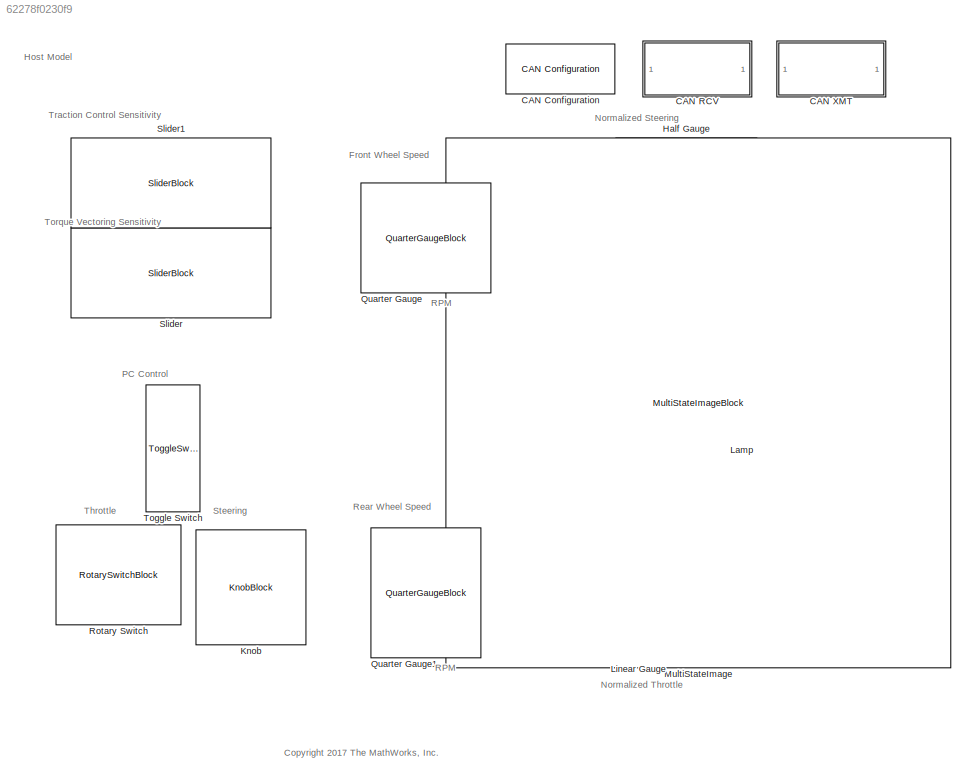
MODEL slx_62278f0230f9
KIND model
CONFIG AbsTol = auto
CONFIG EnableMultiTasking = on
CONFIG FixedStep = auto
CONFIG MaxStep = auto
CONFIG MinStep = auto
CONFIG RelTol = 1e-3
CONFIG SampleTimeConstraint = Unconstrained
CONFIG Solver = ode45
CONFIG SolverName = ode45
CONFIG StartTime = 0.0
CONFIG StopTime = inf
BLOCK [Reference] CAN Configuration  REF=canlib/CAN Configuration
  Ports = []
  SourceBlock = canlib/CAN Configuration
  SourceProductBaseCode = VN
  SourceProductName = Vehicle Network Toolbox
  SourceType = CAN Configuration
  UserDataPersistent = on
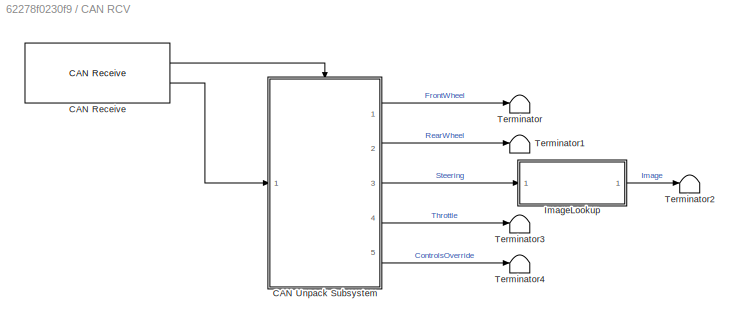
BLOCK [SubSystem] CAN RCV
  Ports = []
  RequestExecContextInheritance = off
BLOCK [Reference] CAN RCV/CAN Receive  REF=canlib/CAN Receive
  Ports = [0, 2]
  SourceBlock = canlib/CAN Receive
  SourceProductBaseCode = VN
  SourceProductName = Vehicle Network Toolbox
  SourceType = CAN Receive
  UserDataPersistent = on
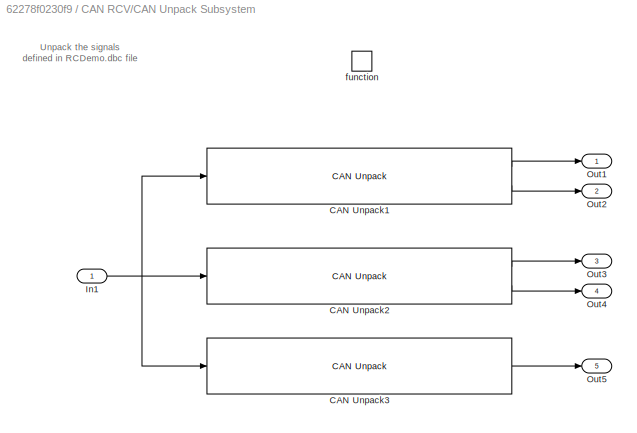
BLOCK [SubSystem] CAN RCV/CAN Unpack Subsystem
  Ports = [1, 5, 0, 1]
  RequestExecContextInheritance = off
  TreatAsAtomicUnit = on
BLOCK [Reference] CAN RCV/CAN Unpack Subsystem/CAN Unpack1  REF=canmsglib/CAN Unpack
  Ports = [1, 2]
  SourceBlock = canmsglib/CAN Unpack
  SourceProductName = Simulink Real-Time
  SourceType = CAN Unpack
BLOCK [Reference] CAN RCV/CAN Unpack Subsystem/CAN Unpack2  REF=canmsglib/CAN Unpack
  Ports = [1, 2]
  SourceBlock = canmsglib/CAN Unpack
  SourceProductName = Simulink Real-Time
  SourceType = CAN Unpack
BLOCK [Reference] CAN RCV/CAN Unpack Subsystem/CAN Unpack3  REF=canmsglib/CAN Unpack
  Ports = [1, 1]
  SourceBlock = canmsglib/CAN Unpack
  SourceProductName = Simulink Real-Time
  SourceType = CAN Unpack
BLOCK [Inport] CAN RCV/CAN Unpack Subsystem/In1
  IconDisplay = Port number
BLOCK [Outport] CAN RCV/CAN Unpack Subsystem/Out1
  IconDisplay = Port number
BLOCK [Outport] CAN RCV/CAN Unpack Subsystem/Out2
  IconDisplay = Port number
  Port = 2
BLOCK [Outport] CAN RCV/CAN Unpack Subsystem/Out3
  IconDisplay = Port number
  Port = 3
BLOCK [Outport] CAN RCV/CAN Unpack Subsystem/Out4
  IconDisplay = Port number
  Port = 4
BLOCK [Outport] CAN RCV/CAN Unpack Subsystem/Out5
  IconDisplay = Port number
  Port = 5
BLOCK [TriggerPort] CAN RCV/CAN Unpack Subsystem/function
  Ports = []
  TriggerType = function-call
  VariantControl = Variant
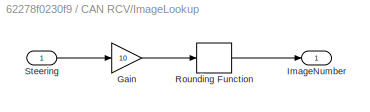
BLOCK [SubSystem] CAN RCV/ImageLookup
  Ports = [1, 1]
  RequestExecContextInheritance = off
BLOCK [Gain] CAN RCV/ImageLookup/Gain
  Gain = 10
  OutDataTypeStr = Inherit: Inherit via internal rule
  ParamDataTypeStr = Inherit: Inherit via internal rule
  SaturateOnIntegerOverflow = off
BLOCK [Outport] CAN RCV/ImageLookup/ImageNumber
  IconDisplay = Port number
BLOCK [Rounding] CAN RCV/ImageLookup/Rounding Function
  Operator = round
BLOCK [Inport] CAN RCV/ImageLookup/Steering
  IconDisplay = Port number
BLOCK [Terminator] CAN RCV/Terminator
BLOCK [Terminator] CAN RCV/Terminator1
BLOCK [Terminator] CAN RCV/Terminator2
BLOCK [Terminator] CAN RCV/Terminator3
BLOCK [Terminator] CAN RCV/Terminator4
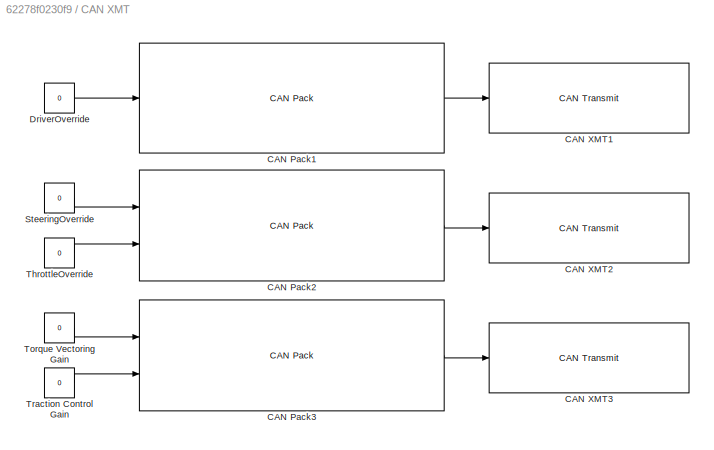
BLOCK [SubSystem] CAN XMT
  Ports = []
  RequestExecContextInheritance = off
BLOCK [Reference] CAN XMT/CAN Pack1  REF=canmsglib/CAN Pack
  Ports = [1, 1]
  SourceBlock = canmsglib/CAN Pack
  SourceProductName = Simulink Real-Time
  SourceType = CAN Pack
BLOCK [Reference] CAN XMT/CAN Pack2  REF=canmsglib/CAN Pack
  Ports = [2, 1]
  SourceBlock = canmsglib/CAN Pack
  SourceProductName = Simulink Real-Time
  SourceType = CAN Pack
BLOCK [Reference] CAN XMT/CAN Pack3  REF=canmsglib/CAN Pack
  Ports = [2, 1]
  SourceBlock = canmsglib/CAN Pack
  SourceProductName = Simulink Real-Time
  SourceType = CAN Pack
BLOCK [Reference] CAN XMT/CAN XMT1  REF=canlib/CAN Transmit
  Ports = [1]
  SourceBlock = canlib/CAN Transmit
  SourceProductBaseCode = VN
  SourceProductName = Vehicle Network Toolbox
  SourceType = CAN Transmit
  UserDataPersistent = on
BLOCK [Reference] CAN XMT/CAN XMT2  REF=canlib/CAN Transmit
  Ports = [1]
  SourceBlock = canlib/CAN Transmit
  SourceProductBaseCode = VN
  SourceProductName = Vehicle Network Toolbox
  SourceType = CAN Transmit
  UserDataPersistent = on
BLOCK [Reference] CAN XMT/CAN XMT3  REF=canlib/CAN Transmit
  Ports = [1]
  SourceBlock = canlib/CAN Transmit
  SourceProductBaseCode = VN
  SourceProductName = Vehicle Network Toolbox
  SourceType = CAN Transmit
  UserDataPersistent = on
BLOCK [Constant] CAN XMT/DriverOverride
  Value = 0
BLOCK [Constant] CAN XMT/SteeringOverride
  Value = 0
BLOCK [Constant] CAN XMT/ThrottleOverride
  Value = 0
BLOCK [Constant] CAN XMT/Torque Vectoring Gain
  Value = 0
BLOCK [Constant] CAN XMT/Traction Control Gain
  Value = 0
BLOCK [SemiCircularGaugeBlock] Half Gauge
  ScaleMax = 1
  ScaleMin = -1
BLOCK [KnobBlock] Knob
  ScaleMax = 1
  ScaleMin = -1
BLOCK [LampBlock] Lamp
  LabelPosition = Hide
BLOCK [LinearGaugeBlock] Linear Gauge
  ScaleMax = 1
  ScaleMin = -1
BLOCK [MultiStateImageBlock] MultiStateImage
  LabelPosition = Hide
BLOCK [QuarterGaugeBlock] Quarter Gauge
  ScaleMax = 1000
BLOCK [QuarterGaugeBlock] Quarter Gauge1
  ScaleMax = 1000
BLOCK [RotarySwitchBlock] Rotary Switch
  LabelPosition = Hide
BLOCK [SliderBlock] Slider
  ScaleMax = 1
BLOCK [SliderBlock] Slider1
  ScaleMax = 1
BLOCK [ToggleSwitchBlock] Toggle Switch
  LabelPosition = Hide
ANNOTATION (root): Normalized Steering
ANNOTATION (root): Normalized Throttle
ANNOTATION (root): PC Control
ANNOTATION (root): RPM
ANNOTATION (root): Rear Wheel Speed
ANNOTATION (root): Steering
ANNOTATION (root): Throttle
ANNOTATION (root): Torque Vectoring Sensitivity
ANNOTATION (root): Traction Control Sensitivity
ANNOTATION (root): Front Wheel Speed
ANNOTATION (root): <copyright redacted>
ANNOTATION (root): Host Model
ANNOTATION CAN RCV/CAN Unpack Subsystem: Unpack the signals defined in RCDemo.dbc file
LINE CAN RCV/CAN Receive:1 -> CAN RCV/CAN Unpack Subsystem:trigger
LINE CAN RCV/CAN Receive:2 -> CAN RCV/CAN Unpack Subsystem:1
LINE CAN RCV/CAN Unpack Subsystem/CAN Unpack1:1 -> CAN RCV/CAN Unpack Subsystem/Out1:1
LINE CAN RCV/CAN Unpack Subsystem/CAN Unpack1:2 -> CAN RCV/CAN Unpack Subsystem/Out2:1
LINE CAN RCV/CAN Unpack Subsystem/CAN Unpack2:1 -> CAN RCV/CAN Unpack Subsystem/Out3:1
LINE CAN RCV/CAN Unpack Subsystem/CAN Unpack2:2 -> CAN RCV/CAN Unpack Subsystem/Out4:1
LINE CAN RCV/CAN Unpack Subsystem/CAN Unpack3:1 -> CAN RCV/CAN Unpack Subsystem/Out5:1
NET CAN RCV/CAN Unpack Subsystem/In1:1 -> CAN RCV/CAN Unpack Subsystem/CAN Unpack1:1, CAN RCV/CAN Unpack Subsystem/CAN Unpack2:1, CAN RCV/CAN Unpack Subsystem/CAN Unpack3:1
LINE CAN RCV/CAN Unpack Subsystem:1 -> CAN RCV/Terminator:1
LINE CAN RCV/CAN Unpack Subsystem:2 -> CAN RCV/Terminator1:1
LINE CAN RCV/CAN Unpack Subsystem:3 -> CAN RCV/ImageLookup:1
LINE CAN RCV/CAN Unpack Subsystem:4 -> CAN RCV/Terminator3:1
LINE CAN RCV/CAN Unpack Subsystem:5 -> CAN RCV/Terminator4:1
LINE CAN RCV/ImageLookup/Gain:1 -> CAN RCV/ImageLookup/Rounding Function:1
LINE CAN RCV/ImageLookup/Rounding Function:1 -> CAN RCV/ImageLookup/ImageNumber:1
LINE CAN RCV/ImageLookup/Steering:1 -> CAN RCV/ImageLookup/Gain:1
LINE CAN RCV/ImageLookup:1 -> CAN RCV/Terminator2:1
LINE CAN XMT/CAN Pack1:1 -> CAN XMT/CAN XMT1:1
LINE CAN XMT/CAN Pack2:1 -> CAN XMT/CAN XMT2:1
LINE CAN XMT/CAN Pack3:1 -> CAN XMT/CAN XMT3:1
LINE CAN XMT/DriverOverride:1 -> CAN XMT/CAN Pack1:1
LINE CAN XMT/SteeringOverride:1 -> CAN XMT/CAN Pack2:1
LINE CAN XMT/ThrottleOverride:1 -> CAN XMT/CAN Pack2:2
LINE CAN XMT/Torque Vectoring Gain:1 -> CAN XMT/CAN Pack3:1
LINE CAN XMT/Traction Control Gain:1 -> CAN XMT/CAN Pack3:2
note: NET lines group one-source signal fan-out (src -> all destinations, sorted); 1:1 wires keep LINE
